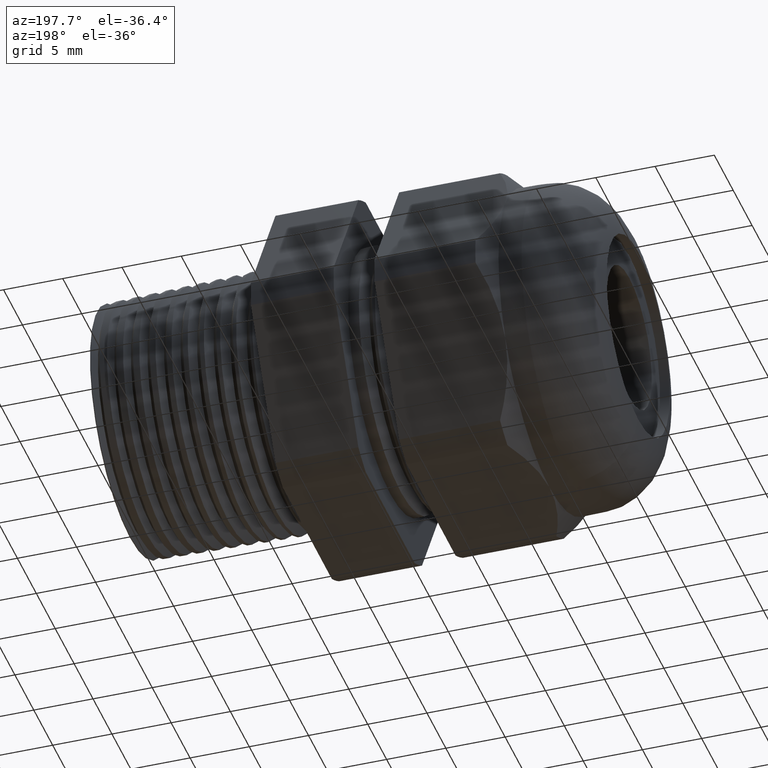
[diagram: clean part render]
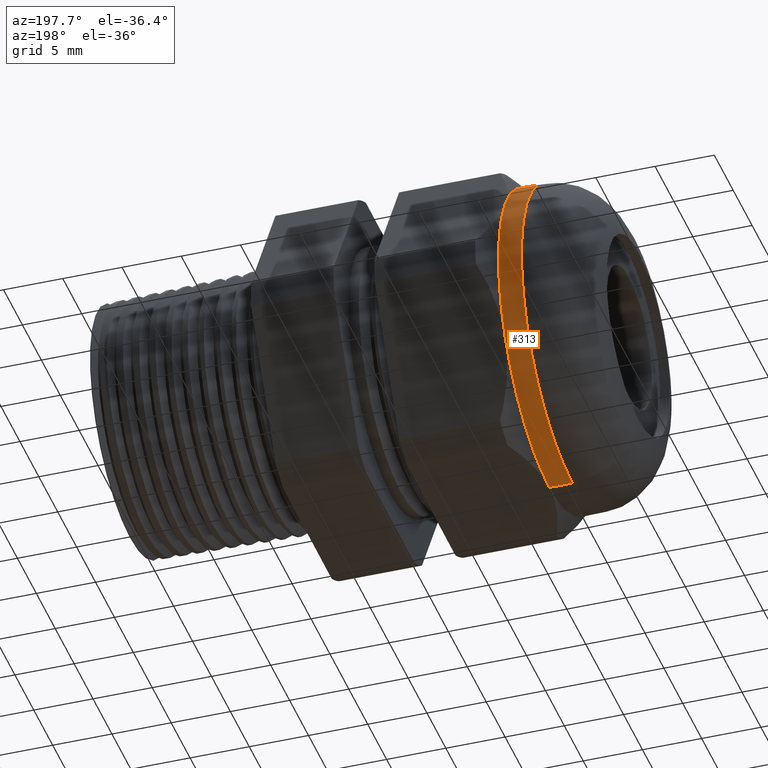
[diagram: same view with one face highlighted and labeled with its STEP entity id]
A machine part, auxiliary view. The second image highlights one B-rep face of the part: STEP entity #313.
In plain terms, the highlighted cylindrical surface (partial cylindrical patch) has radius 13.462 mm, axis along (1, 0, 0).
Its self-contained STEP definition (entity closure, byte-faithful):
#84 = EDGE_CURVE ( 'NONE', #88, #85, #1448, .T. ) ;
#85 = VERTEX_POINT ( 'NONE', #1443 ) ;
#88 = VERTEX_POINT ( 'NONE', #1431 ) ;
#271 = VERTEX_POINT ( 'NONE', #1836 ) ;
#273 = EDGE_CURVE ( 'NONE', #271, #292, #1830, .T. ) ;
#283 = ORIENTED_EDGE ( 'NONE', *, *, #273, .F. ) ;
#290 = EDGE_CURVE ( 'NONE', #85, #292, #1809, .T. ) ;
#292 = VERTEX_POINT ( 'NONE', #1860 ) ;
#303 = ORIENTED_EDGE ( 'NONE', *, *, #290, .T. ) ;
#309 = ORIENTED_EDGE ( 'NONE', *, *, #84, .T. ) ;
#310 = EDGE_LOOP ( 'NONE', ( #309, #303, #283, #673, #676, #538 ) ) ;
#313 = ADVANCED_FACE ( 'NONE', ( #1880 ), #1879, .T. ) ;
#372 = EDGE_CURVE ( 'NONE', #88, #3727, #2024, .T. ) ;
#538 = ORIENTED_EDGE ( 'NONE', *, *, #372, .F. ) ;
#673 = ORIENTED_EDGE ( 'NONE', *, *, #674, .F. ) ;
#674 = EDGE_CURVE ( 'NONE', #675, #271, #2625, .T. ) ;
#675 = VERTEX_POINT ( 'NONE', #2621 ) ;
#676 = ORIENTED_EDGE ( 'NONE', *, *, #677, .F. ) ;
#677 = EDGE_CURVE ( 'NONE', #3727, #675, #2620, .T. ) ;
#1431 = CARTESIAN_POINT ( 'NONE',  ( -1.190910976997933600, 0.0000000000000000000, -0.5300000000000001400 ) ) ;
#1443 = CARTESIAN_POINT ( 'NONE',  ( -1.190910976997933600, 6.490628035480972400E-017, 0.5300000000000001400 ) ) ;
#1444 = DIRECTION ( 'NONE',  ( 0.0000000000000000000, 0.0000000000000000000, 1.000000000000000000 ) ) ;
#1445 = DIRECTION ( 'NONE',  ( 1.000000000000000000, 0.0000000000000000000, 0.0000000000000000000 ) ) ;
#1446 = CARTESIAN_POINT ( 'NONE',  ( -1.190910976997933600, 0.0000000000000000000, 0.0000000000000000000 ) ) ;
#1447 = AXIS2_PLACEMENT_3D ( 'NONE', #1446, #1445, #1444 ) ;
#1448 = CIRCLE ( 'NONE', #1447, 0.5300000000000001400 ) ;
#1809 = LINE ( 'NONE', #1868, #1867 ) ;
#1826 = DIRECTION ( 'NONE',  ( 0.0000000000000000000, 0.0000000000000000000, -1.000000000000000000 ) ) ;
#1827 = DIRECTION ( 'NONE',  ( 1.000000000000000000, 0.0000000000000000000, 0.0000000000000000000 ) ) ;
#1828 = CARTESIAN_POINT ( 'NONE',  ( -1.114724409448818900, 0.0000000000000000000, 0.0000000000000000000 ) ) ;
#1829 = AXIS2_PLACEMENT_3D ( 'NONE', #1828, #1827, #1826 ) ;
#1830 = CIRCLE ( 'NONE', #1829, 0.5300000000000001400 ) ;
#1836 = CARTESIAN_POINT ( 'NONE',  ( -1.114724409448818900, 0.4589934640057528000, 0.2650000000000001200 ) ) ;
#1860 = CARTESIAN_POINT ( 'NONE',  ( -1.114724409448818900, 0.0000000000000000000, 0.5300000000000001400 ) ) ;
#1866 = DIRECTION ( 'NONE',  ( 1.000000000000000000, 0.0000000000000000000, 0.0000000000000000000 ) ) ;
#1867 = VECTOR ( 'NONE', #1866, 39.37007874015748100 ) ;
#1868 = CARTESIAN_POINT ( 'NONE',  ( 0.0000000000000000000, 6.490628035480972400E-017, 0.5300000000000001400 ) ) ;
#1875 = DIRECTION ( 'NONE',  ( 0.0000000000000000000, 0.0000000000000000000, -1.000000000000000000 ) ) ;
#1876 = DIRECTION ( 'NONE',  ( 1.000000000000000000, 0.0000000000000000000, 0.0000000000000000000 ) ) ;
#1877 = CARTESIAN_POINT ( 'NONE',  ( 0.0000000000000000000, 0.0000000000000000000, 0.0000000000000000000 ) ) ;
#1878 = AXIS2_PLACEMENT_3D ( 'NONE', #1877, #1876, #1875 ) ;
#1879 = CYLINDRICAL_SURFACE ( 'NONE', #1878, 0.5300000000000001400 ) ;
#1880 = FACE_OUTER_BOUND ( 'NONE', #310, .T. ) ;
#2021 = DIRECTION ( 'NONE',  ( 1.000000000000000000, 0.0000000000000000000, 0.0000000000000000000 ) ) ;
#2022 = VECTOR ( 'NONE', #2021, 39.37007874015748100 ) ;
#2023 = CARTESIAN_POINT ( 'NONE',  ( 0.0000000000000000000, 0.0000000000000000000, -0.5300000000000001400 ) ) ;
#2024 = LINE ( 'NONE', #2023, #2022 ) ;
#2616 = DIRECTION ( 'NONE',  ( 0.0000000000000000000, 0.0000000000000000000, -1.000000000000000000 ) ) ;
#2617 = DIRECTION ( 'NONE',  ( 1.000000000000000000, 0.0000000000000000000, 0.0000000000000000000 ) ) ;
#2618 = CARTESIAN_POINT ( 'NONE',  ( -1.114724409448818900, 0.0000000000000000000, 0.0000000000000000000 ) ) ;
#2619 = AXIS2_PLACEMENT_3D ( 'NONE', #2618, #2617, #2616 ) ;
#2620 = CIRCLE ( 'NONE', #2619, 0.5300000000000001400 ) ;
#2621 = CARTESIAN_POINT ( 'NONE',  ( -1.114724409448818900, 0.4589934640057528000, -0.2650000000000000100 ) ) ;
#2622 = DIRECTION ( 'NONE',  ( 0.0000000000000000000, 0.0000000000000000000, -1.000000000000000000 ) ) ;
#2623 = DIRECTION ( 'NONE',  ( 1.000000000000000000, 0.0000000000000000000, 0.0000000000000000000 ) ) ;
#2624 = AXIS2_PLACEMENT_3D ( 'NONE', #2631, #2623, #2622 ) ;
#2625 = CIRCLE ( 'NONE', #2624, 0.5300000000000001400 ) ;
#2631 = CARTESIAN_POINT ( 'NONE',  ( -1.114724409448818900, 0.0000000000000000000, 0.0000000000000000000 ) ) ;
#3592 = CARTESIAN_POINT ( 'NONE',  ( -1.114724409448818900, 0.0000000000000000000, -0.5300000000000001400 ) ) ;
#3727 = VERTEX_POINT ( 'NONE', #3592 ) ;